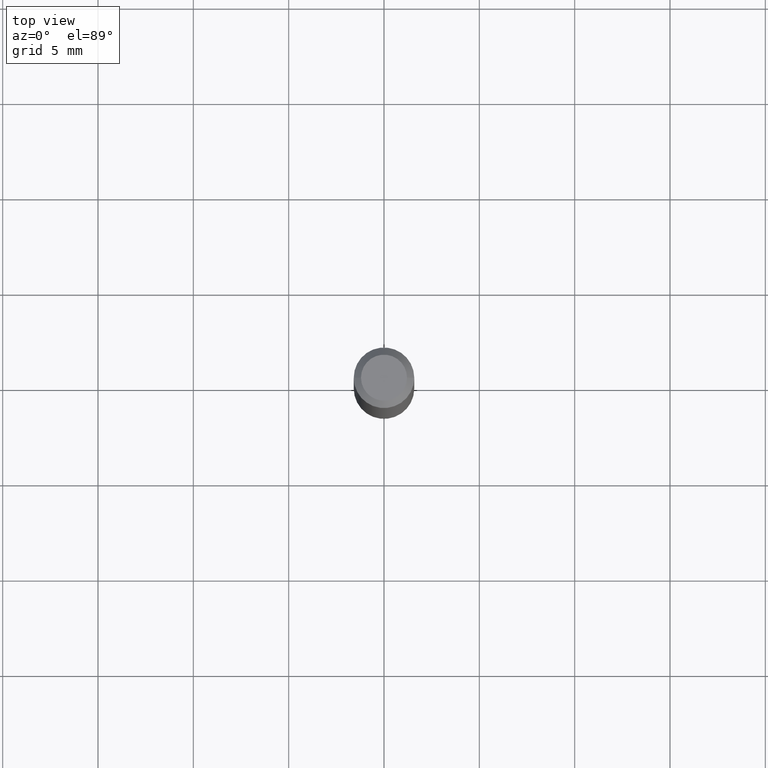
[diagram: clean part render]
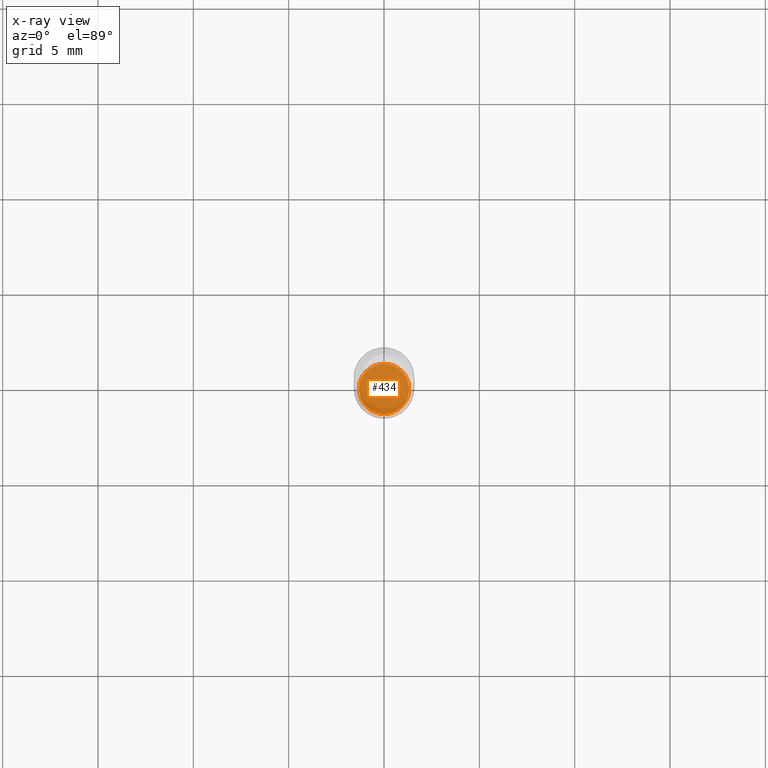
[diagram: x-ray — body ghosted, one internal face saturated and labeled with its STEP entity id]
A machine part, top view, then the same camera in x-ray: the body is ghosted and one INTERNAL B-rep face — a face not visible from any outside direction — is saturated and labeled: STEP entity #434.
In plain terms, the highlighted planar face has unit normal (-0, 0, 1).
Its self-contained STEP definition (entity closure, byte-faithful):
#22 = EDGE_CURVE ( 'NONE', #223, #476, #80, .T. ) ;
#43 = DIRECTION ( 'NONE',  ( -2.445468806185136597E-29, 3.491481338843145583E-15, 1.000000000000000000 ) ) ;
#44 = DIRECTION ( 'NONE',  ( 1.000000000000000000, -6.982962677686260400E-15, 0.000000000000000000 ) ) ;
#80 = CIRCLE ( 'NONE', #472, 0.05199999999999998374 ) ;
#131 = DIRECTION ( 'NONE',  ( 1.000000000000000000, -6.982962677686260400E-15, 0.000000000000000000 ) ) ;
#145 = DIRECTION ( 'NONE',  ( 1.000000000000000000, -6.982962677686265922E-15, 4.876176775795935793E-29 ) ) ;
#150 = DIRECTION ( 'NONE',  ( -2.438088387897960049E-29, 3.491481338843145188E-15, 1.000000000000000000 ) ) ;
#209 = CARTESIAN_POINT ( 'NONE',  ( 3.283041872303546419E-29, -4.687313697396923253E-15, -1.342500000000000249 ) ) ;
#222 = CARTESIAN_POINT ( 'NONE',  ( 3.283041872303546419E-29, -4.687313697396923253E-15, -1.342500000000000249 ) ) ;
#223 = VERTEX_POINT ( 'NONE', #494 ) ;
#241 = EDGE_CURVE ( 'NONE', #476, #223, #381, .T. ) ;
#248 = AXIS2_PLACEMENT_3D ( 'NONE', #222, #150, #145 ) ;
#269 = FACE_OUTER_BOUND ( 'NONE', #514, .T. ) ;
#288 = AXIS2_PLACEMENT_3D ( 'NONE', #331, #450, #131 ) ;
#316 = ORIENTED_EDGE ( 'NONE', *, *, #22, .F. ) ;
#331 = CARTESIAN_POINT ( 'NONE',  ( 3.283041872303546419E-29, -4.687313697396923253E-15, -1.342500000000000249 ) ) ;
#350 = ORIENTED_EDGE ( 'NONE', *, *, #241, .F. ) ;
#381 = CIRCLE ( 'NONE', #288, 0.05199999999999998374 ) ;
#403 = CARTESIAN_POINT ( 'NONE',  ( -0.05199999999999998374, -4.315182247627560416E-15, -1.342500000000000249 ) ) ;
#434 = ADVANCED_FACE ( 'NONE', ( #269 ), #477, .F. ) ;
#450 = DIRECTION ( 'NONE',  ( -2.445468806185136597E-29, 3.491481338843145583E-15, 1.000000000000000000 ) ) ;
#472 = AXIS2_PLACEMENT_3D ( 'NONE', #209, #43, #44 ) ;
#476 = VERTEX_POINT ( 'NONE', #403 ) ;
#477 = PLANE ( 'NONE',  #248 ) ;
#494 = CARTESIAN_POINT ( 'NONE',  ( 0.05199999999999998374, -5.050427756636608617E-15, -1.342500000000000249 ) ) ;
#514 = EDGE_LOOP ( 'NONE', ( #316, #350 ) ) ;